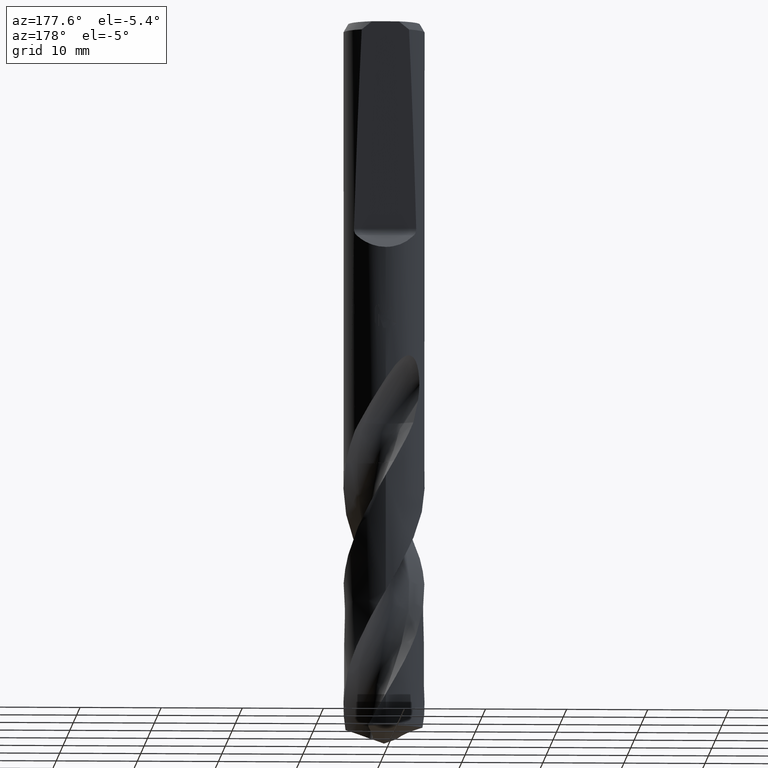
[diagram: clean part render]
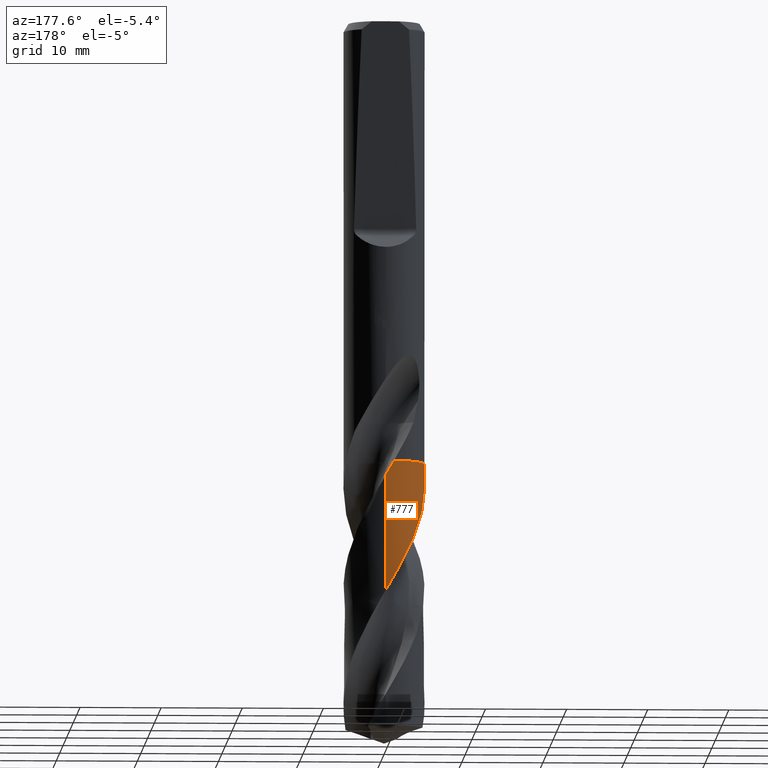
[diagram: same view with one face highlighted and labeled with its STEP entity id]
A machine part, auxiliary view. The second image highlights one B-rep face of the part: STEP entity #777.
In plain terms, the highlighted conical surface has half-angle 0 deg.
Its self-contained STEP definition (entity closure, byte-faithful):
#319=VERTEX_POINT('',#850);
#365=EDGE_CURVE('',#539,#319,#904,.T.);
#375=EDGE_CURVE('',#713,#747,#915,.T.);
#399=VERTEX_POINT('',#941);
#405=EDGE_CURVE('',#399,#487,#948,.T.);
#443=EDGE_CURVE('',#319,#399,#992,.T.);
#487=VERTEX_POINT('',#1040);
#537=EDGE_CURVE('',#747,#539,#1091,.T.);
#539=VERTEX_POINT('',#1093);
#713=VERTEX_POINT('',#1285);
#717=EDGE_CURVE('',#487,#713,#1289,.T.);
#747=VERTEX_POINT('',#1320);
#777=ADVANCED_FACE('',(#1353),#1354,.T.);
#850=CARTESIAN_POINT('',(-4.78610130798976,-1.44645583056904,-54.405));
#904=B_SPLINE_CURVE_WITH_KNOTS('',3,(#2639,#2640,#2641,#2642,#2643,#2644,#2645,#2646,#2647,#2648,#2649,#2650,#2651,#2652,#2653,#2654,#2655,#2656,#2657,#2658,#2659,#2660,#2661,#2662,#2663,#2664,#2665,#2666,#2667,#2668,#2669,#2670,#2671,#2672,#2673,#2674,#2675,#2676,#2677,#2678,#2679,#2680,#2681,#2682,#2683,#2684,#2685,#2686,#2687,#2688,#2689,#2690,#2691,#2692,#2693,#2694,#2695,#2696,#2697,#2698,#2699,#2700,#2701,#2702,#2703,#2704,#2705,#2706,#2707,#2708,#2709,#2710,#2711,#2712),.UNSPECIFIED.,.F.,.F.,(4,2,2,2,2,2,2,2,2,2,2,2,2,2,2,2,2,2,2,2,2,2,2,2,2,2,2,2,2,2,2,2,2,2,2,2,4),(0.0,2.05429725957435,3.02092450673455,3.98584748159151,5.45632075250942,6.90962713612315,8.1184980727787,8.89671551090007,9.76802292788075,11.0932380141799,11.8051088026955,12.6098257789162,14.0548532752058,15.71910156072,17.3054300258015,18.2707295421163,19.5057654500381,20.2894402180641,21.1530729651455,22.5387176350113,23.2513713996573,23.9420374520009,25.2284392709206,25.8990300792094,27.2017287172198,28.5426675249299,29.7141612534069,31.2968954735606,32.1039502326146,32.1946576747593,33.6241099974501,34.6966082565651,35.4997460496622,36.7052953167645,37.3069293748118,37.6072466812854,37.9084111974518),.UNSPECIFIED.);
#915=B_SPLINE_CURVE_WITH_KNOTS('',3,(#2984,#2985,#2986,#2987,#2988,#2989,#2990,#2991,#2992,#2993,#2994,#2995,#2996,#2997,#2998,#2999,#3000,#3001,#3002,#3003,#3004,#3005,#3006,#3007,#3008,#3009,#3010,#3011,#3012,#3013,#3014,#3015,#3016,#3017,#3018,#3019,#3020,#3021,#3022,#3023,#3024,#3025,#3026,#3027,#3028,#3029,#3030,#3031,#3032,#3033,#3034,#3035,#3036,#3037),.UNSPECIFIED.,.F.,.F.,(4,2,2,2,2,2,2,2,2,2,2,2,2,2,2,2,2,2,2,2,2,2,2,2,2,2,4),(0.0,0.264834370401932,3.10607901026658,5.02886861828543,6.95642999091319,7.92422659582363,9.8540331439553,10.8220370245212,12.7499517249521,13.718063654044,14.682455429405,16.6043577805667,17.5683245963151,19.4910622794635,20.4541866219424,22.377040428067,23.3398686619453,25.1511012224416,26.7403281042131,28.1348998834531,29.3535250609527,30.4219328900437,32.2944980169587,33.6978303586315,34.7510514495389,36.3306601878986,37.9107965429428),.UNSPECIFIED.);
#941=CARTESIAN_POINT('',(-4.78526772431987,-1.44921110145575,-54.4));
#948=CIRCLE('',#3148,4.9999);
#992=B_SPLINE_CURVE_WITH_KNOTS('',3,(#4208,#4209,#4210,#4211),.UNSPECIFIED.,.F.,.F.,(4,4),(0.0,0.0132116815939082),.UNSPECIFIED.);
#1040=CARTESIAN_POINT('',(-1.04090529583753,4.89034928968242,-54.4));
#1091=LINE('',#5016,#5017);
#1093=CARTESIAN_POINT('',(-3.41520311043039E-015,4.99994908142822,-70.4889652199841));
#1285=CARTESIAN_POINT('',(-1.03806906670148,4.89095213381667,-54.405));
#1289=B_SPLINE_CURVE_WITH_KNOTS('',3,(#6935,#6936,#6937,#6938),.UNSPECIFIED.,.F.,.F.,(4,4),(0.0,0.0107286265811956),.UNSPECIFIED.);
#1320=CARTESIAN_POINT('',(5.41758178419652E-012,4.99990552066722,-56.2096829324038));
#1353=FACE_OUTER_BOUND('',#7619,.T.);
#1354=CONICAL_SURFACE('',#7620,4.99995,3.05062678397599E-006);
#2639=CARTESIAN_POINT('',(4.67258431461033,-1.7795942860263,-87.180148828669));
#2640=CARTESIAN_POINT('',(4.79494292599026,-1.4583188324784,-86.5879372196029));
#2641=CARTESIAN_POINT('',(4.88373123602967,-1.12569462996544,-85.9917034020037));
#2642=CARTESIAN_POINT('',(4.96319467001324,-0.626716955525091,-85.1203822195723));
#2643=CARTESIAN_POINT('',(4.98086169813646,-0.465920630935164,-84.84210274678));
#2644=CARTESIAN_POINT('',(5.00053725851117,-0.143468948285799,-84.2850003011744));
#2645=CARTESIAN_POINT('',(5.00255790594722,0.0178882739529926,-84.0061764695379));
#2646=CARTESIAN_POINT('',(4.9879824366516,0.424617308141621,-83.3038470344792));
#2647=CARTESIAN_POINT('',(4.96108629782153,0.669333604702918,-82.8814221457194));
#2648=CARTESIAN_POINT('',(4.87194358946573,1.15026951424584,-82.0386460164695));
#2649=CARTESIAN_POINT('',(4.81029711829403,1.38554091313064,-81.6186692110108));
#2650=CARTESIAN_POINT('',(4.66674668803617,1.8061013104768,-80.8514153809218));
#2651=CARTESIAN_POINT('',(4.59000763691064,1.99310974172143,-80.5040023136406));
#2652=CARTESIAN_POINT('',(4.44546127751642,2.29228843054121,-79.9316882587209));
#2653=CARTESIAN_POINT('',(4.38434427893847,2.40710951114958,-79.7077500672034));
#2654=CARTESIAN_POINT('',(4.24558846107369,2.64497536544948,-79.2324042048377));
#2655=CARTESIAN_POINT('',(4.16690638759142,2.76727387838615,-78.9808080284276));
#2656=CARTESIAN_POINT('',(3.95521551273746,3.06675048608505,-78.3477859238652));
#2657=CARTESIAN_POINT('',(3.81556487167292,3.23886913692196,-77.9671277441801));
#2658=CARTESIAN_POINT('',(3.58388217561619,3.48850321602821,-77.3803730462233));
#2659=CARTESIAN_POINT('',(3.49990370314339,3.57274160413579,-77.1754652131021));
#2660=CARTESIAN_POINT('',(3.31494662484827,3.74551007274902,-76.738366177605));
#2661=CARTESIAN_POINT('',(3.21322051321081,3.83313749076995,-76.5059966569796));
#2662=CARTESIAN_POINT('',(2.91895734982288,4.06663995006899,-75.8574438424195));
#2663=CARTESIAN_POINT('',(2.71922022941738,4.20283999908021,-75.4425037377938));
#2664=CARTESIAN_POINT('',(2.26959259937518,4.46385506052093,-74.546692393112));
#2665=CARTESIAN_POINT('',(2.01785945260222,4.58313905727359,-74.0659650570021));
#2666=CARTESIAN_POINT('',(1.50940562104346,4.77404605348665,-73.1293530354877));
#2667=CARTESIAN_POINT('',(1.25429729637049,4.84731759694225,-72.6743179895328));
#2668=CARTESIAN_POINT('',(0.83665857416522,4.93209171434537,-71.9390774961243));
#2669=CARTESIAN_POINT('',(0.677370503695368,4.95647356587261,-71.6602812983096));
#2670=CARTESIAN_POINT('',(0.31225547931784,4.99444262153796,-71.0264067279493));
#2671=CARTESIAN_POINT('',(0.106021896902066,5.00308523860747,-70.6716551362118));
#2672=CARTESIAN_POINT('',(-0.231298923382448,4.9963120639497,-70.0905011518529));
#2673=CARTESIAN_POINT('',(-0.361992290358037,4.98854028119352,-69.8650980330902));
#2674=CARTESIAN_POINT('',(-0.635539629755653,4.96148314991418,-69.3906152138503));
#2675=CARTESIAN_POINT('',(-0.778154639637863,4.94112218464187,-69.1413499901457));
#2676=CARTESIAN_POINT('',(-1.14703603024303,4.8720824892692,-68.4934786851477));
#2677=CARTESIAN_POINT('',(-1.37121018376834,4.81381380733019,-68.0958022220545));
#2678=CARTESIAN_POINT('',(-1.70359147025556,4.70227119243621,-67.4917725661792));
#2679=CARTESIAN_POINT('',(-1.81498401723628,4.66040251847988,-67.2867589576107));
#2680=CARTESIAN_POINT('',(-2.03098367488923,4.57031217852321,-66.8825341322595));
#2681=CARTESIAN_POINT('',(-2.13564686872551,4.52235138664703,-66.6832667668524));
#2682=CARTESIAN_POINT('',(-2.43055382337812,4.37467912072367,-66.1136793958401));
#2683=CARTESIAN_POINT('',(-2.61622422825986,4.26625614558808,-65.7442412813049));
#2684=CARTESIAN_POINT('',(-2.88744459014821,4.08344878142691,-65.1808435853301));
#2685=CARTESIAN_POINT('',(-2.97819113244037,4.01773943865243,-64.9879117531578));
#2686=CARTESIAN_POINT('',(-3.23834649009853,3.81571766116396,-64.4195823543967));
#2687=CARTESIAN_POINT('',(-3.40120934561402,3.67129721917267,-64.0433492107332));
#2688=CARTESIAN_POINT('',(-3.71180423459593,3.35737327425127,-63.2818788350682));
#2689=CARTESIAN_POINT('',(-3.85847049827324,3.18773362911694,-62.8968984809463));
#2690=CARTESIAN_POINT('',(-4.11104264130377,2.85251920481035,-62.1732867866781));
#2691=CARTESIAN_POINT('',(-4.2194212565247,2.68959055096999,-61.8350364925586));
#2692=CARTESIAN_POINT('',(-4.45104870716559,2.29283006020312,-61.041937678341));
#2693=CARTESIAN_POINT('',(-4.56594493548276,2.0545491214566,-60.5883251214611));
#2694=CARTESIAN_POINT('',(-4.71024379802772,1.68253658066999,-59.9004929648292));
#2695=CARTESIAN_POINT('',(-4.75380121271809,1.55517894619558,-59.66838516665));
#2696=CARTESIAN_POINT('',(-4.79643328699645,1.41195202816543,-59.4097217431321));
#2697=CARTESIAN_POINT('',(-4.80068166167923,1.39743964222287,-59.3835490109816));
#2698=CARTESIAN_POINT('',(-4.87096586569148,1.15322713334357,-58.9438462255115));
#2699=CARTESIAN_POINT('',(-4.92061864531852,0.918768481536434,-58.5319160868));
#2700=CARTESIAN_POINT('',(-4.97779813501053,0.502987733797579,-57.8091657164838));
#2701=CARTESIAN_POINT('',(-4.99265375782307,0.323691556874103,-57.4999207076846));
#2702=CARTESIAN_POINT('',(-5.00170800036381,0.00964609052650017,-56.9578404813346));
#2703=CARTESIAN_POINT('',(-5.00015736885851,-0.124973119573302,-56.7253361489176));
#2704=CARTESIAN_POINT('',(-4.98268803349692,-0.461196924355737,-56.1446418382812));
#2705=CARTESIAN_POINT('',(-4.95998359406637,-0.662102079877536,-55.7968800418999));
#2706=CARTESIAN_POINT('',(-4.90785598786548,-0.960276623033989,-55.2743051094687));
#2707=CARTESIAN_POINT('',(-4.88752655833425,-1.05887198352918,-55.1004213807365));
#2708=CARTESIAN_POINT('',(-4.85266385329914,-1.20548108436539,-54.8393905805551));
#2709=CARTESIAN_POINT('',(-4.84033349710047,-1.25406931227932,-54.7524674893453));
#2710=CARTESIAN_POINT('',(-4.81420863600634,-1.35089683748076,-54.5782762246347));
#2711=CARTESIAN_POINT('',(-4.80051466657756,-1.39876993852622,-54.4915331667133));
#2712=CARTESIAN_POINT('',(-4.78606095883439,-1.44658931748436,-54.404757761063));
#2984=CARTESIAN_POINT('',(-1.03901407680336,4.89075146167878,-54.403334090936));
#2985=CARTESIAN_POINT('',(-0.995695009321226,4.89995460480725,-54.4797002328573));
#2986=CARTESIAN_POINT('',(-0.952271952019275,4.90857826941776,-54.5560897140607));
#2987=CARTESIAN_POINT('',(-0.441979627479759,5.00290084870174,-55.4516986314666));
#2988=CARTESIAN_POINT('',(0.0349109277921951,5.02228983361731,-56.2671599975703));
#2989=CARTESIAN_POINT('',(0.827132782042184,4.94148264741423,-57.6405916292004));
#2990=CARTESIAN_POINT('',(1.14301567402082,4.87810920054348,-58.1941121774756));
#2991=CARTESIAN_POINT('',(1.75899254488538,4.69136725684583,-59.3041777099091));
#2992=CARTESIAN_POINT('',(2.05752827350512,4.56831124674932,-59.8586223425264));
#2993=CARTESIAN_POINT('',(2.48493683490468,4.34170800529664,-60.6935066859604));
#2994=CARTESIAN_POINT('',(2.6240772466259,4.25905998069118,-60.9724013801359));
#2995=CARTESIAN_POINT('',(3.02803174427574,3.99178104961548,-61.8077976371366));
#2996=CARTESIAN_POINT('',(3.27916244574481,3.78818252985038,-62.3627757756935));
#2997=CARTESIAN_POINT('',(3.62412335804872,3.44835659710361,-63.1983450762963));
#2998=CARTESIAN_POINT('',(3.73380295457252,3.32929100600314,-63.4772889121928));
#2999=CARTESIAN_POINT('',(4.04413357865253,2.95772832407341,-64.3121985477498));
#3000=CARTESIAN_POINT('',(4.22629193154963,2.69101508451498,-64.8667572390086));
#3001=CARTESIAN_POINT('',(4.45942741999785,2.26694124233129,-65.7018192757097));
#3002=CARTESIAN_POINT('',(4.53045283895429,2.12144851612953,-65.9807897855669));
#3003=CARTESIAN_POINT('',(4.65792067357505,1.82459250460927,-66.5379405824841));
#3004=CARTESIAN_POINT('',(4.71431910258578,1.6734852670255,-66.8156497332264));
#3005=CARTESIAN_POINT('',(4.86096289329715,1.21392704915371,-67.6478850902042));
#3006=CARTESIAN_POINT('',(4.92891264675736,0.8991584490512,-68.2011947666743));
#3007=CARTESIAN_POINT('',(4.98488451183485,0.419936019021695,-69.0332645455641));
#3008=CARTESIAN_POINT('',(4.99582741076823,0.259079593212386,-69.3108792253947));
#3009=CARTESIAN_POINT('',(5.00528606537093,-0.22331198114603,-70.1433010283775));
#3010=CARTESIAN_POINT('',(4.9805942958937,-0.544548775793879,-70.6968366598929));
#3011=CARTESIAN_POINT('',(4.89748203856451,-1.01986548850651,-71.5289525940658));
#3012=CARTESIAN_POINT('',(4.86210305351702,-1.17703032698114,-71.8063469976147));
#3013=CARTESIAN_POINT('',(4.73357923791875,-1.64197468802887,-72.6386343402482));
#3014=CARTESIAN_POINT('',(4.61825589158056,-1.94285017317295,-73.19224337129));
#3015=CARTESIAN_POINT('',(4.40299002546769,-2.37469959117883,-74.0243745925057));
#3016=CARTESIAN_POINT('',(4.32426279964246,-2.51520603126505,-74.3017189334312));
#3017=CARTESIAN_POINT('',(4.07834573681927,-2.90833149105167,-75.1017914287214));
#3018=CARTESIAN_POINT('',(3.89476193586876,-3.14995519212746,-75.6233832545349));
#3019=CARTESIAN_POINT('',(3.51109226429201,-3.56966916357651,-76.6040198226619));
#3020=CARTESIAN_POINT('',(3.31647424673745,-3.75116580383352,-77.0615210576372));
#3021=CARTESIAN_POINT('',(2.92585440674267,-4.06120958789588,-77.9221668685782));
#3022=CARTESIAN_POINT('',(2.73332728457749,-4.19321359171069,-78.3239236155262));
#3023=CARTESIAN_POINT('',(2.35651394405646,-4.41453566750358,-79.0775373642298));
#3024=CARTESIAN_POINT('',(2.17469073079257,-4.50688079020488,-79.428565383057));
#3025=CARTESIAN_POINT('',(1.8239235394271,-4.65886024535927,-80.0882404809219));
#3026=CARTESIAN_POINT('',(1.65634496445714,-4.72104104072372,-80.3962449050279));
#3027=CARTESIAN_POINT('',(1.18680748506199,-4.86716983339208,-81.2444532054356));
#3028=CARTESIAN_POINT('',(0.879831343075387,-4.93190509200686,-81.7828518624681));
#3029=CARTESIAN_POINT('',(0.335856855882106,-4.99420452173828,-82.7278041599287));
#3030=CARTESIAN_POINT('',(0.101185611846624,-5.00446823179886,-83.1321760598066));
#3031=CARTESIAN_POINT('',(-0.309440157504251,-4.99351189873552,-83.8406835837982));
#3032=CARTESIAN_POINT('',(-0.485107533614857,-4.97951669219836,-84.1441160601596));
#3033=CARTESIAN_POINT('',(-0.921452956266895,-4.9214433114494,-84.9035050615977));
#3034=CARTESIAN_POINT('',(-1.18014363236599,-4.8659045601366,-85.3584855753004));
#3035=CARTESIAN_POINT('',(-1.68652641671737,-4.71438959741273,-86.269707811459));
#3036=CARTESIAN_POINT('',(-1.93312374206399,-4.61873066963711,-86.724137184781));
#3037=CARTESIAN_POINT('',(-2.1708720227863,-4.50414416517543,-87.180148828669));
#3148=AXIS2_PLACEMENT_3D('',#7807,#7808,#7809);
#4208=CARTESIAN_POINT('',(-4.78717413204347,-1.44290130943914,-54.4114499205538));
#4209=CARTESIAN_POINT('',(-4.78654010976225,-1.44500479138039,-54.4076331600634));
#4210=CARTESIAN_POINT('',(-4.78590464069764,-1.44710805575739,-54.4038165190458));
#4211=CARTESIAN_POINT('',(-4.78526772431986,-1.44921110145576,-54.3999999999999));
#5016=CARTESIAN_POINT('',(-6.13157395448785E-016,4.99995,-70.7900744143345));
#5017=VECTOR('',#7941,1.0);
#6935=CARTESIAN_POINT('',(-1.04090529583753,4.8903492896824,-54.4));
#6936=CARTESIAN_POINT('',(-1.03915053014128,4.89072279921815,-54.4030936318125));
#6937=CARTESIAN_POINT('',(-1.03739559727747,4.89109535707097,-54.4061872827731));
#6938=CARTESIAN_POINT('',(-1.03564049796286,4.89146696320244,-54.4092809546768));
#7619=EDGE_LOOP('',(#8190,#8191,#8192,#8193,#8194,#8195));
#7620=AXIS2_PLACEMENT_3D('',#8196,#8197,#8198);
#7807=CARTESIAN_POINT('',(0.0,0.0,-54.4));
#7808=DIRECTION('',(0.0,0.0,-1.0));
#7809=DIRECTION('',(0.0,1.0,0.0));
#7941=DIRECTION('',(-3.73581694279192E-022,3.05062678397126E-006,-0.999999999995347));
#8190=ORIENTED_EDGE('',*,*,#537,.T.);
#8191=ORIENTED_EDGE('',*,*,#365,.T.);
#8192=ORIENTED_EDGE('',*,*,#443,.T.);
#8193=ORIENTED_EDGE('',*,*,#405,.T.);
#8194=ORIENTED_EDGE('',*,*,#717,.T.);
#8195=ORIENTED_EDGE('',*,*,#375,.T.);
#8196=CARTESIAN_POINT('',(0.0,0.0,-70.7900744143345));
#8197=DIRECTION('',(0.0,-0.0,-1.0));
#8198=DIRECTION('',(0.0,1.0,0.0));